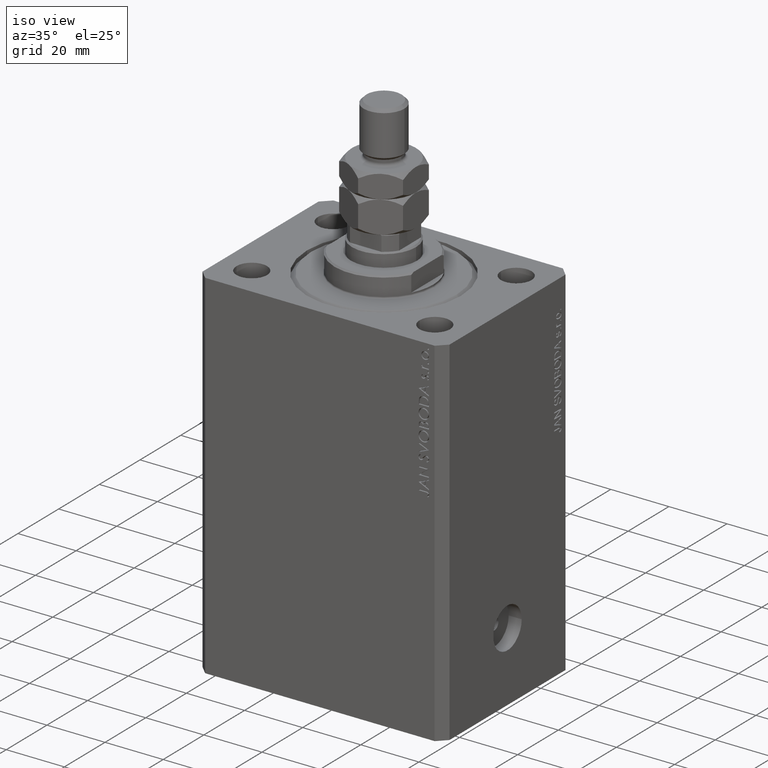
[diagram: clean part render]
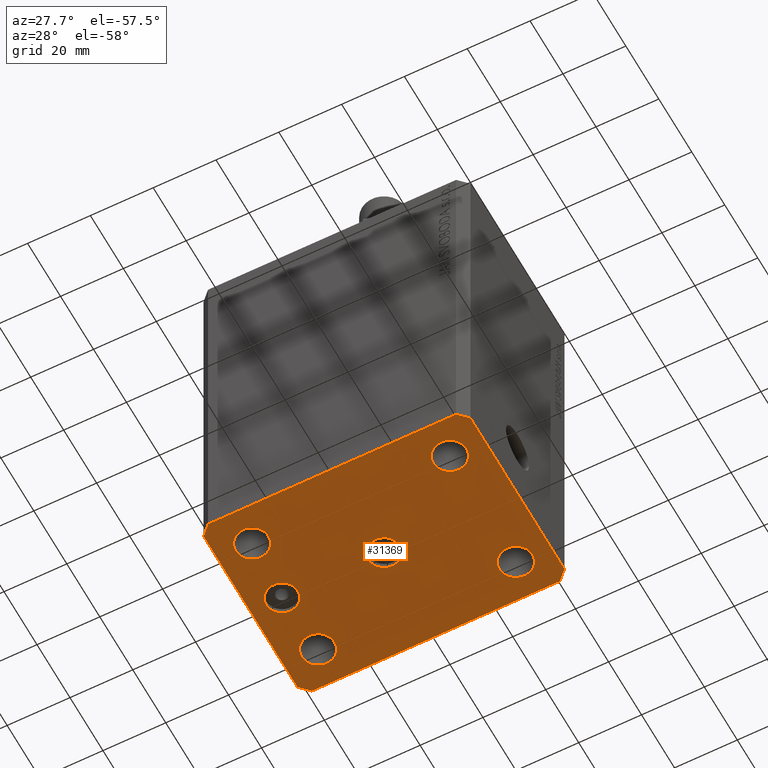
[diagram: tour spotlight — one face highlighted and labeled with its STEP entity id]
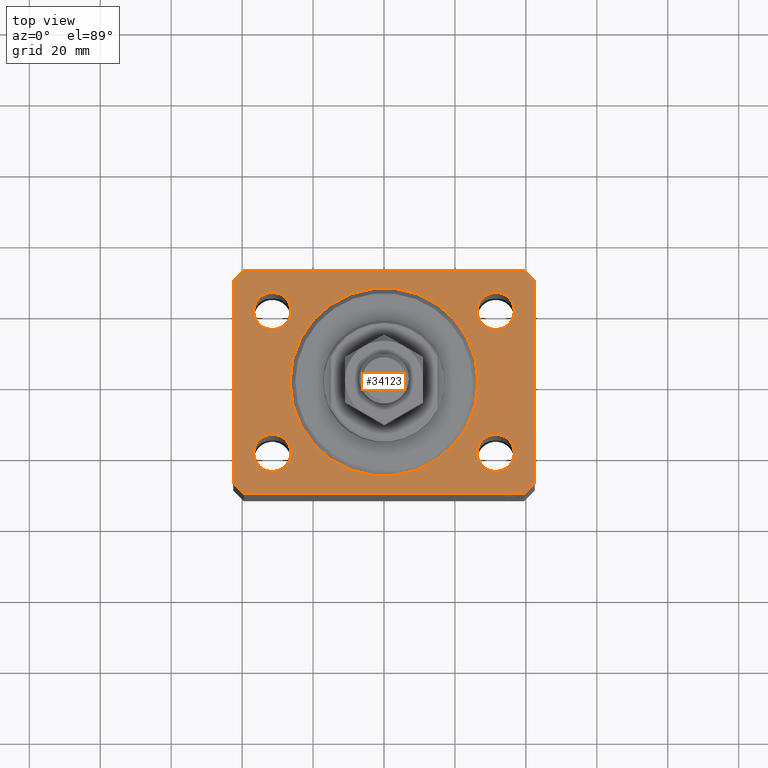
[diagram: tour spotlight — one face highlighted and labeled with its STEP entity id]
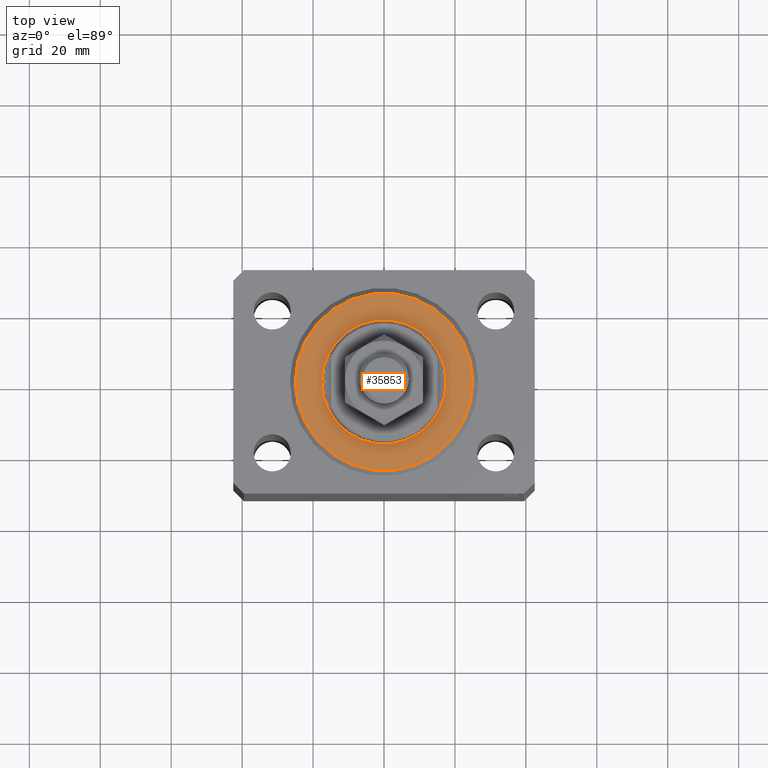
[diagram: tour spotlight — one face highlighted and labeled with its STEP entity id]
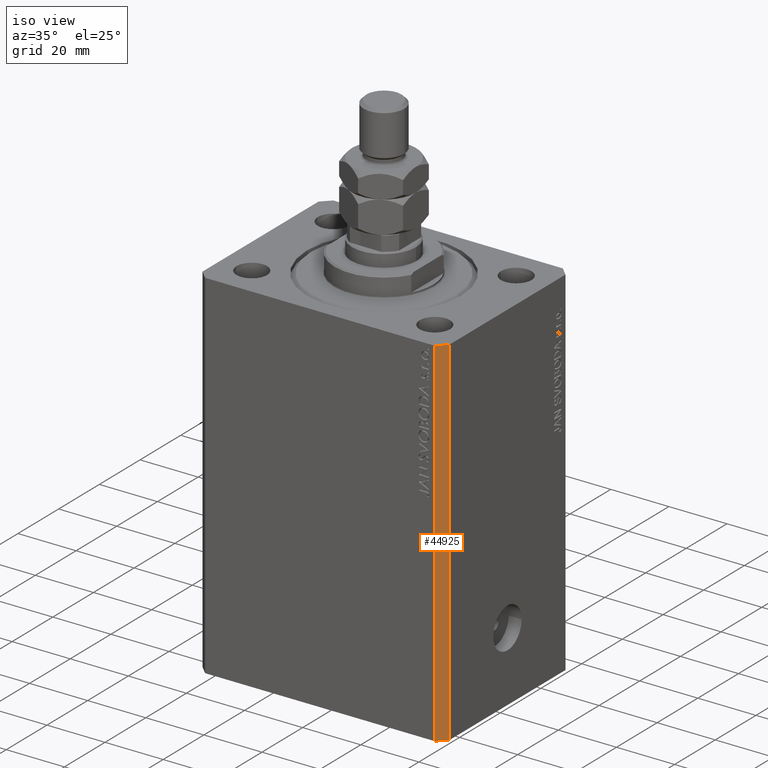
[diagram: tour spotlight — one face highlighted and labeled with its STEP entity id]
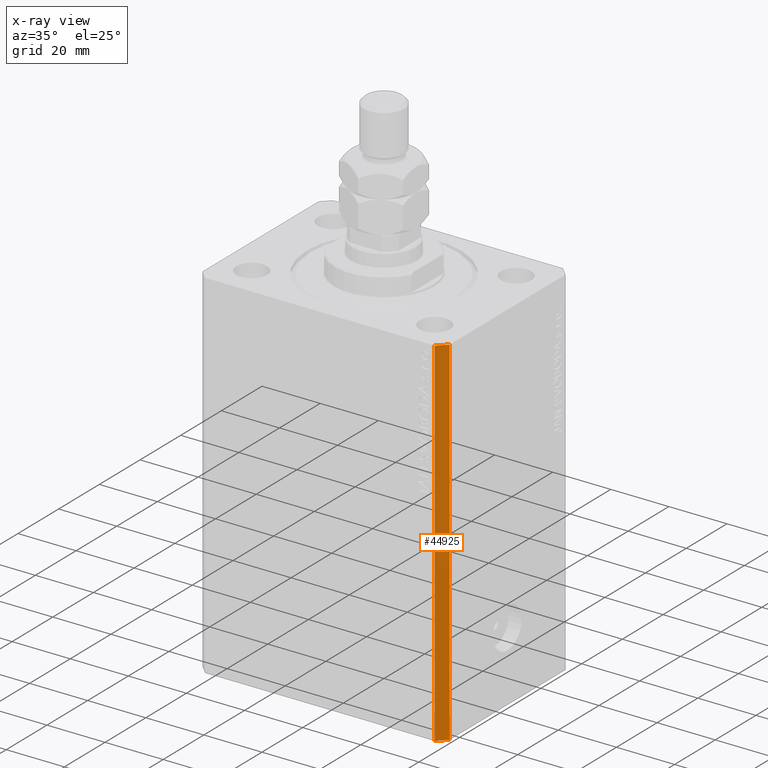
[diagram: x-ray of the same camera — body ghosted, this tour face saturated]
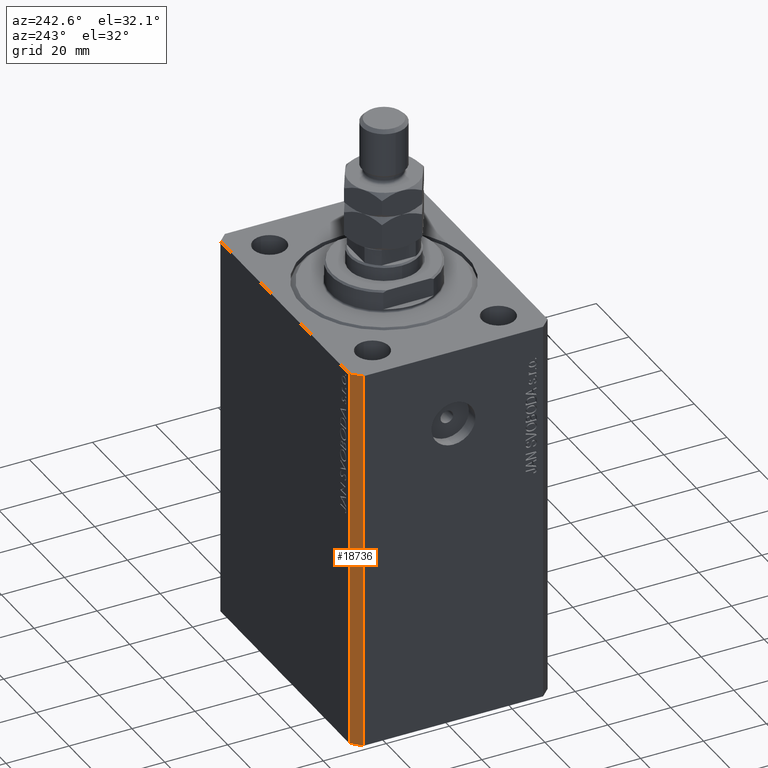
[diagram: tour spotlight — one face highlighted and labeled with its STEP entity id]
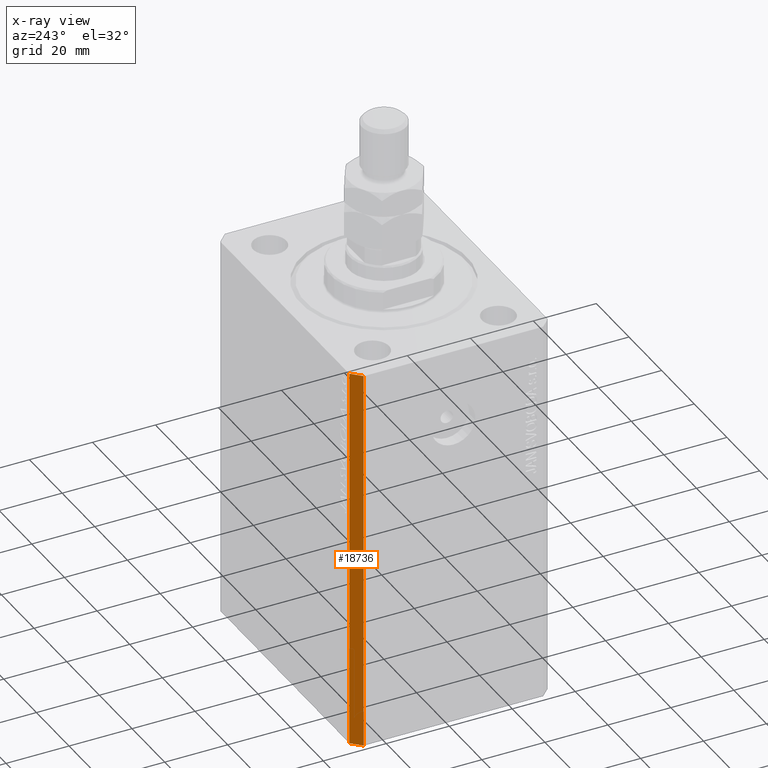
[diagram: x-ray of the same camera — body ghosted, this tour face saturated]
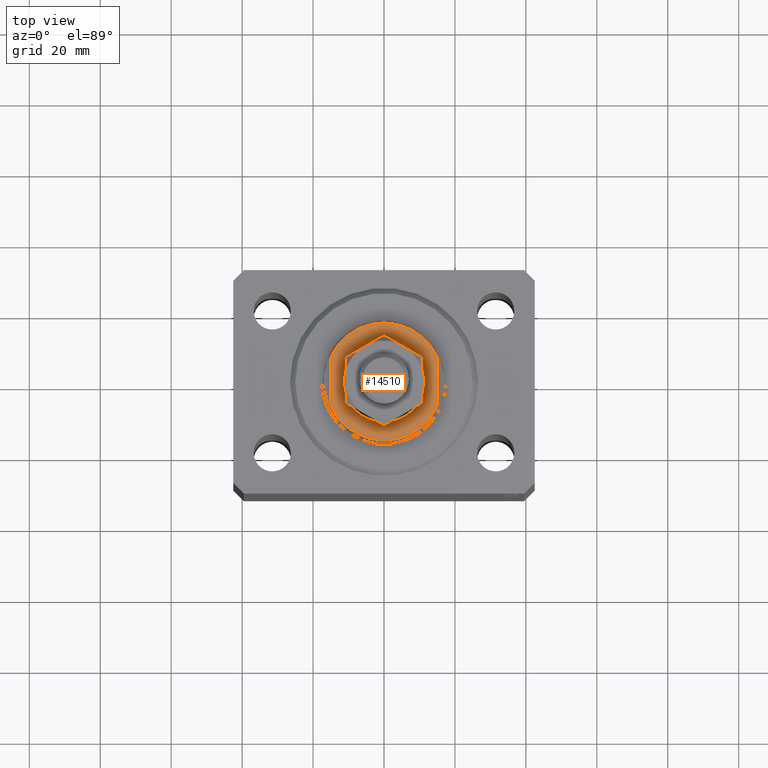
[diagram: tour spotlight — one face highlighted and labeled with its STEP entity id]
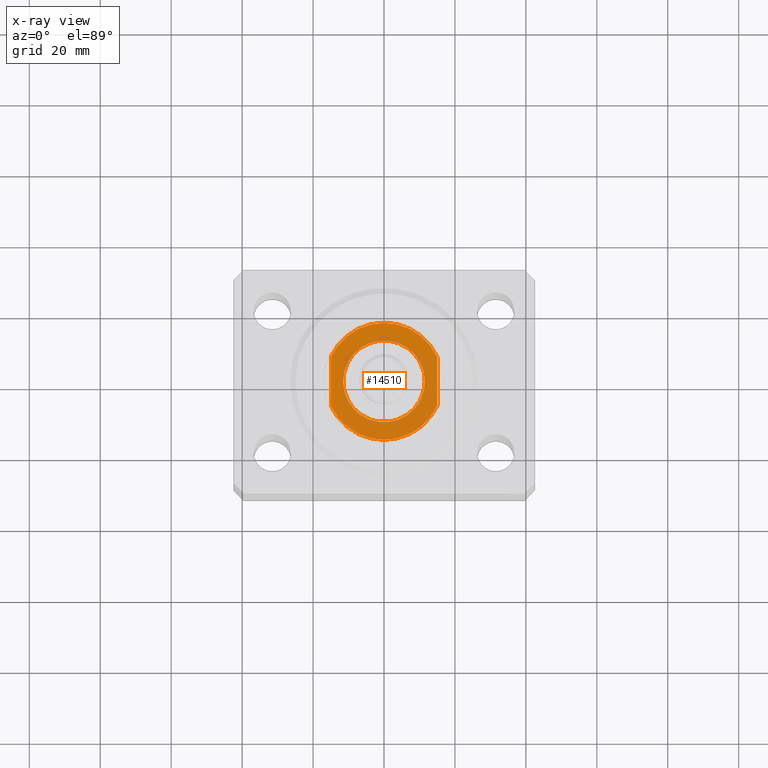
[diagram: x-ray of the same camera — body ghosted, this tour face saturated]
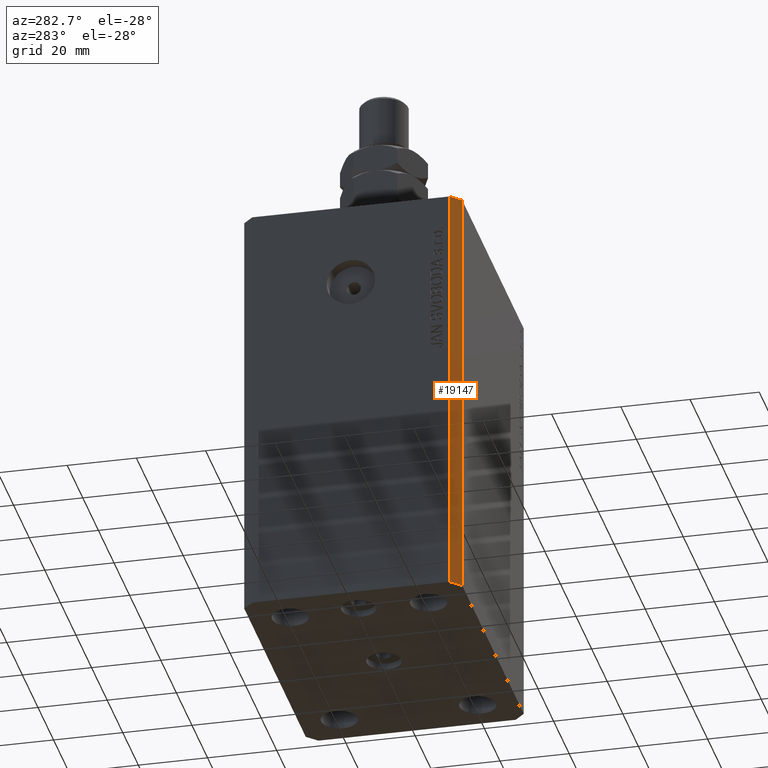
[diagram: tour spotlight — one face highlighted and labeled with its STEP entity id]
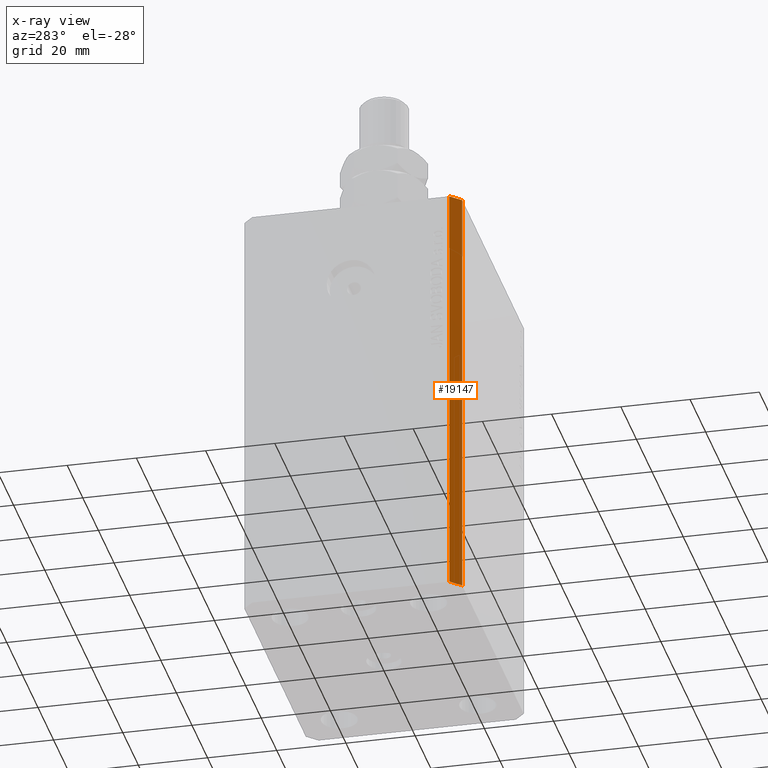
[diagram: x-ray of the same camera — body ghosted, this tour face saturated]
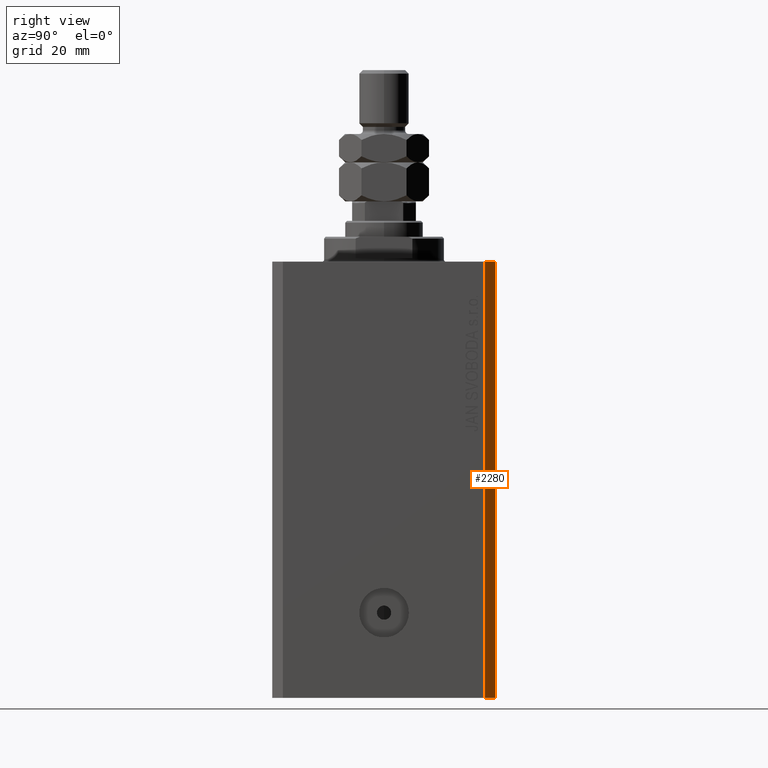
[diagram: tour spotlight — one face highlighted and labeled with its STEP entity id]
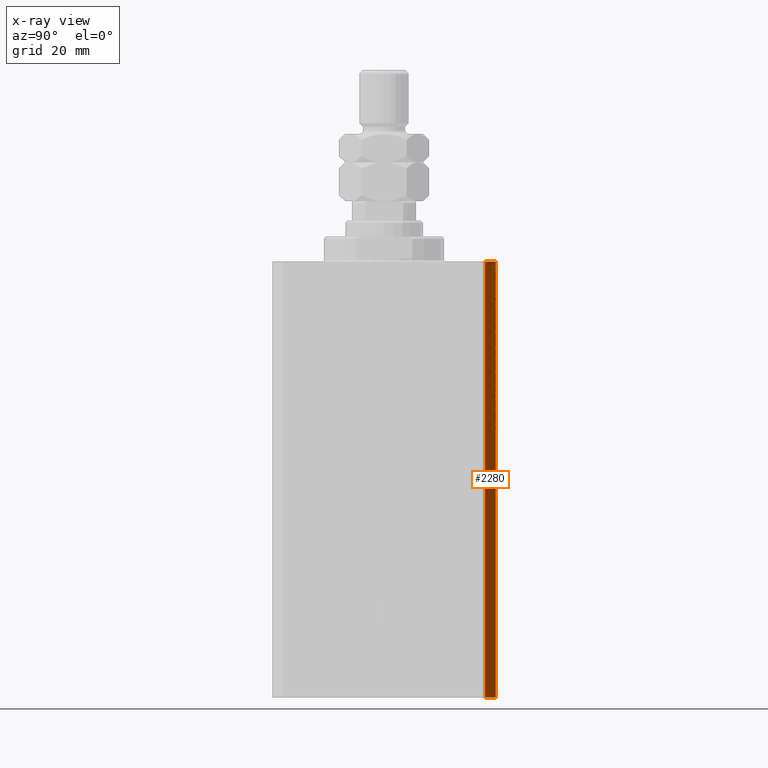
[diagram: x-ray of the same camera — body ghosted, this tour face saturated]
A machine part: a face-by-face anatomy tour. The part has 917 B-rep faces; the first image is the clean iso view, then the 8 largest visible faces are spotlighted one at a time (largest first), each with its STEP entity span.

Face 1 — auxiliary view, entity #31369. In plain terms, the highlighted planar face has unit normal (0, 0, 1).
Definition (entity closure, byte-faithful):
#44 = FACE_OUTER_BOUND ( 'NONE', #23607, .T. ) ;
#75 = VERTEX_POINT ( 'NONE', #43739 ) ;
#107 = DIRECTION ( 'NONE',  ( -1.000000000000000000, 0.000000000000000000, 0.000000000000000000 ) ) ;
#194 = VERTEX_POINT ( 'NONE', #2844 ) ;
#302 = AXIS2_PLACEMENT_3D ( 'NONE', #24879, #14129, #107 ) ;
#808 = EDGE_CURVE ( 'NONE', #25117, #24030, #24682, .T. ) ;
#1094 = AXIS2_PLACEMENT_3D ( 'NONE', #7277, #36454, #7969 ) ;
#1215 = CARTESIAN_POINT ( 'NONE',  ( -27.50000000000000355, 6.123233995736762338E-16, -123.0000000000000000 ) ) ;
#1263 = DIRECTION ( 'NONE',  ( -0.7071067811865471286, -0.7071067811865479058, 0.000000000000000000 ) ) ;
#1536 = ORIENTED_EDGE ( 'NONE', *, *, #23151, .F. ) ;
#1807 = DIRECTION ( 'NONE',  ( -0.000000000000000000, -0.000000000000000000, -1.000000000000000000 ) ) ;
#2246 = CARTESIAN_POINT ( 'NONE',  ( -39.50000000000000711, -31.50000000000000000, -123.0000000000000000 ) ) ;
#2261 = ORIENTED_EDGE ( 'NONE', *, *, #13666, .F. ) ;
#2658 = EDGE_CURVE ( 'NONE', #39849, #27090, #44837, .T. ) ;
#2844 = CARTESIAN_POINT ( 'NONE',  ( 42.50000000000051870, 28.49999999999995381, -123.0000000000000000 ) ) ;
#3448 = ORIENTED_EDGE ( 'NONE', *, *, #45920, .F. ) ;
#3619 = EDGE_CURVE ( 'NONE', #24030, #16848, #44883, .T. ) ;
#3645 = EDGE_CURVE ( 'NONE', #40877, #26865, #33692, .T. ) ;
#3777 = FACE_BOUND ( 'NONE', #11320, .T. ) ;
#4040 = CIRCLE ( 'NONE', #302, 5.000000000000000000 ) ;
#4378 = CARTESIAN_POINT ( 'NONE',  ( 26.25000000000000355, 19.99999999999999289, -123.0000000000000000 ) ) ;
#4438 = CARTESIAN_POINT ( 'NONE',  ( 42.50000000000051870, 28.49999999999995381, -123.0000000000000000 ) ) ;
#4473 = FACE_BOUND ( 'NONE', #26505, .T. ) ;
#4586 = DIRECTION ( 'NONE',  ( 8.886653596232072440E-15, 1.000000000000000000, 0.000000000000000000 ) ) ;
#4692 = VERTEX_POINT ( 'NONE', #17332 ) ;
#4821 = VERTEX_POINT ( 'NONE', #7678 ) ;
#5380 = CARTESIAN_POINT ( 'NONE',  ( 31.50000000000000000, 19.99999999999999289, -123.0000000000000000 ) ) ;
#6069 = CARTESIAN_POINT ( 'NONE',  ( -36.74999999999999289, -20.00000000000000355, -123.0000000000000000 ) ) ;
#6382 = DIRECTION ( 'NONE',  ( 1.000000000000000000, 0.000000000000000000, 0.000000000000000000 ) ) ;
#6464 = CARTESIAN_POINT ( 'NONE',  ( -42.50000000000000000, 28.50000000000000000, -123.0000000000000000 ) ) ;
#6636 = EDGE_LOOP ( 'NONE', ( #27706, #17834 ) ) ;
#6695 = DIRECTION ( 'NONE',  ( 0.000000000000000000, -1.000000000000000000, 0.000000000000000000 ) ) ;
#7253 = ORIENTED_EDGE ( 'NONE', *, *, #2658, .F. ) ;
#7277 = CARTESIAN_POINT ( 'NONE',  ( 0.000000000000000000, 0.000000000000000000, -123.0000000000000000 ) ) ;
#7499 = DIRECTION ( 'NONE',  ( 1.000000000000000000, 0.000000000000000000, 0.000000000000000000 ) ) ;
#7678 = CARTESIAN_POINT ( 'NONE',  ( -37.50000000000000000, 0.000000000000000000, -123.0000000000000000 ) ) ;
#7969 = DIRECTION ( 'NONE',  ( 1.000000000000000000, 0.000000000000000000, -0.000000000000000000 ) ) ;
#7985 = CIRCLE ( 'NONE', #17699, 5.249999999999997335 ) ;
#8619 = DIRECTION ( 'NONE',  ( -1.000000000000000000, 0.000000000000000000, 0.000000000000000000 ) ) ;
#8683 = VECTOR ( 'NONE', #4586, 1000.000000000000000 ) ;
#8834 = VERTEX_POINT ( 'NONE', #45348 ) ;
#8933 = DIRECTION ( 'NONE',  ( 1.000000000000000000, 0.000000000000000000, 0.000000000000000000 ) ) ;
#8988 = CARTESIAN_POINT ( 'NONE',  ( 39.50000000000000711, -31.50000000000000000, -123.0000000000000000 ) ) ;
#9397 = DIRECTION ( 'NONE',  ( 0.7071067811865471286, -0.7071067811865479058, 0.000000000000000000 ) ) ;
#9409 = EDGE_CURVE ( 'NONE', #10934, #25117, #40259, .T. ) ;
#9874 = EDGE_CURVE ( 'NONE', #4692, #36643, #21077, .T. ) ;
#10450 = LINE ( 'NONE', #39177, #43881 ) ;
#10592 = LINE ( 'NONE', #17841, #38545 ) ;
#10934 = VERTEX_POINT ( 'NONE', #19654 ) ;
#11086 = EDGE_CURVE ( 'NONE', #194, #37011, #25453, .T. ) ;
#11184 = EDGE_CURVE ( 'NONE', #4821, #35531, #25605, .T. ) ;
#11320 = EDGE_LOOP ( 'NONE', ( #36794, #3448 ) ) ;
#11743 = CARTESIAN_POINT ( 'NONE',  ( 39.50000000000000711, -31.50000000000000000, -123.0000000000000000 ) ) ;
#12019 = CARTESIAN_POINT ( 'NONE',  ( -31.50000000000000000, 19.99999999999999645, -123.0000000000000000 ) ) ;
#12167 = AXIS2_PLACEMENT_3D ( 'NONE', #44345, #36650, #19135 ) ;
#12285 = DIRECTION ( 'NONE',  ( 0.000000000000000000, 0.000000000000000000, -1.000000000000000000 ) ) ;
#12317 = DIRECTION ( 'NONE',  ( 1.000000000000000000, 0.000000000000000000, 0.000000000000000000 ) ) ;
#12479 = CIRCLE ( 'NONE', #39319, 5.250000000000000888 ) ;
#12710 = DIRECTION ( 'NONE',  ( -0.000000000000000000, -0.000000000000000000, -1.000000000000000000 ) ) ;
#12896 = CARTESIAN_POINT ( 'NONE',  ( -42.50000000000000000, -28.50000000000000000, -123.0000000000000000 ) ) ;
#13340 = VECTOR ( 'NONE', #6695, 1000.000000000000000 ) ;
#13451 = EDGE_CURVE ( 'NONE', #8834, #75, #4040, .T. ) ;
#13666 = EDGE_CURVE ( 'NONE', #44878, #14316, #18208, .T. ) ;
#14003 = LINE ( 'NONE', #15084, #8683 ) ;
#14129 = DIRECTION ( 'NONE',  ( 0.000000000000000000, 0.000000000000000000, -1.000000000000000000 ) ) ;
#14182 = DIRECTION ( 'NONE',  ( -1.000000000000000000, 0.000000000000000000, 0.000000000000000000 ) ) ;
#14316 = VERTEX_POINT ( 'NONE', #16720 ) ;
#14966 = FACE_BOUND ( 'NONE', #17249, .T. ) ;
#15047 = VECTOR ( 'NONE', #23236, 1000.000000000000000 ) ;
#15084 = CARTESIAN_POINT ( 'NONE',  ( 42.50000000000000711, -28.50000000000000355, -123.0000000000000000 ) ) ;
#15330 = ORIENTED_EDGE ( 'NONE', *, *, #28206, .F. ) ;
#15663 = CARTESIAN_POINT ( 'NONE',  ( -26.25000000000000000, 19.99999999999999645, -123.0000000000000000 ) ) ;
#15986 = DIRECTION ( 'NONE',  ( 1.000000000000000000, 0.000000000000000000, 0.000000000000000000 ) ) ;
#16082 = ORIENTED_EDGE ( 'NONE', *, *, #42092, .F. ) ;
#16720 = CARTESIAN_POINT ( 'NONE',  ( 26.24999999999999645, -20.00000000000000355, -123.0000000000000000 ) ) ;
#16848 = VERTEX_POINT ( 'NONE', #2246 ) ;
#17062 = CARTESIAN_POINT ( 'NONE',  ( -32.50000000000000000, 0.000000000000000000, -123.0000000000000000 ) ) ;
#17249 = EDGE_LOOP ( 'NONE', ( #7253, #21729 ) ) ;
#17332 = CARTESIAN_POINT ( 'NONE',  ( 36.75000000000000000, 19.99999999999999289, -123.0000000000000000 ) ) ;
#17699 = AXIS2_PLACEMENT_3D ( 'NONE', #21579, #18310, #19164 ) ;
#17834 = ORIENTED_EDGE ( 'NONE', *, *, #26647, .F. ) ;
#17841 = CARTESIAN_POINT ( 'NONE',  ( -39.50000000000000711, -31.50000000000000000, -123.0000000000000000 ) ) ;
#17985 = VERTEX_POINT ( 'NONE', #11743 ) ;
#18208 = CIRCLE ( 'NONE', #42080, 5.249999999999997335 ) ;
#18310 = DIRECTION ( 'NONE',  ( -0.000000000000000000, -0.000000000000000000, -1.000000000000000000 ) ) ;
#18708 = CARTESIAN_POINT ( 'NONE',  ( -31.49999999999999289, -20.00000000000000355, -123.0000000000000000 ) ) ;
#18911 = VECTOR ( 'NONE', #1263, 1000.000000000000000 ) ;
#18930 = AXIS2_PLACEMENT_3D ( 'NONE', #29804, #12285, #37260 ) ;
#19135 = DIRECTION ( 'NONE',  ( -1.000000000000000000, 0.000000000000000000, 0.000000000000000000 ) ) ;
#19164 = DIRECTION ( 'NONE',  ( 1.000000000000000000, 0.000000000000000000, 0.000000000000000000 ) ) ;
#19623 = AXIS2_PLACEMENT_3D ( 'NONE', #18708, #39497, #7499 ) ;
#19654 = CARTESIAN_POINT ( 'NONE',  ( -39.50000000000000711, 31.50000000000000000, -123.0000000000000000 ) ) ;
#19776 = CARTESIAN_POINT ( 'NONE',  ( -42.50000000000000000, 28.50000000000000000, -123.0000000000000000 ) ) ;
#19822 = CARTESIAN_POINT ( 'NONE',  ( 42.50000000000000711, -28.50000000000000355, -123.0000000000000000 ) ) ;
#19974 = LINE ( 'NONE', #8988, #15047 ) ;
#20277 = AXIS2_PLACEMENT_3D ( 'NONE', #23654, #20373, #8933 ) ;
#20373 = DIRECTION ( 'NONE',  ( -0.000000000000000000, -0.000000000000000000, -1.000000000000000000 ) ) ;
#21077 = CIRCLE ( 'NONE', #38971, 5.249999999999997335 ) ;
#21579 = CARTESIAN_POINT ( 'NONE',  ( 31.49999999999999289, -20.00000000000000355, -123.0000000000000000 ) ) ;
#21729 = ORIENTED_EDGE ( 'NONE', *, *, #41714, .F. ) ;
#22261 = CARTESIAN_POINT ( 'NONE',  ( -26.24999999999999289, -20.00000000000000355, -123.0000000000000000 ) ) ;
#22445 = FACE_BOUND ( 'NONE', #6636, .T. ) ;
#23134 = DIRECTION ( 'NONE',  ( 1.000000000000000000, 0.000000000000000000, 0.000000000000000000 ) ) ;
#23151 = EDGE_CURVE ( 'NONE', #17985, #28714, #19974, .T. ) ;
#23201 = CARTESIAN_POINT ( 'NONE',  ( 31.49999999999999289, -20.00000000000000355, -123.0000000000000000 ) ) ;
#23236 = DIRECTION ( 'NONE',  ( 0.7071067811865483499, 0.7071067811865466846, 0.000000000000000000 ) ) ;
#23607 = EDGE_LOOP ( 'NONE', ( #32028, #27906, #44248, #1536, #38195, #38795, #44296, #36444 ) ) ;
#23654 = CARTESIAN_POINT ( 'NONE',  ( -31.49999999999999289, -20.00000000000000355, -123.0000000000000000 ) ) ;
#23945 = ORIENTED_EDGE ( 'NONE', *, *, #31589, .F. ) ;
#24030 = VERTEX_POINT ( 'NONE', #27520 ) ;
#24537 = DIRECTION ( 'NONE',  ( 0.000000000000000000, 0.000000000000000000, -1.000000000000000000 ) ) ;
#24682 = LINE ( 'NONE', #6464, #13340 ) ;
#24879 = CARTESIAN_POINT ( 'NONE',  ( 0.000000000000000000, 0.000000000000000000, -123.0000000000000000 ) ) ;
#25117 = VERTEX_POINT ( 'NONE', #19776 ) ;
#25453 = LINE ( 'NONE', #4438, #39775 ) ;
#25605 = CIRCLE ( 'NONE', #12167, 4.999999999999997335 ) ;
#25996 = CIRCLE ( 'NONE', #43151, 4.999999999999997335 ) ;
#26468 = AXIS2_PLACEMENT_3D ( 'NONE', #30833, #45070, #45294 ) ;
#26505 = EDGE_LOOP ( 'NONE', ( #33142, #23945 ) ) ;
#26647 = EDGE_CURVE ( 'NONE', #26865, #40877, #41224, .T. ) ;
#26865 = VERTEX_POINT ( 'NONE', #6069 ) ;
#27090 = VERTEX_POINT ( 'NONE', #34918 ) ;
#27520 = CARTESIAN_POINT ( 'NONE',  ( -42.50000000000000000, -28.50000000000000000, -123.0000000000000000 ) ) ;
#27706 = ORIENTED_EDGE ( 'NONE', *, *, #3645, .F. ) ;
#27863 = CIRCLE ( 'NONE', #18930, 5.000000000000000000 ) ;
#27906 = ORIENTED_EDGE ( 'NONE', *, *, #11086, .F. ) ;
#28206 = EDGE_CURVE ( 'NONE', #75, #8834, #27863, .T. ) ;
#28469 = EDGE_LOOP ( 'NONE', ( #15330, #31370 ) ) ;
#28714 = VERTEX_POINT ( 'NONE', #19822 ) ;
#29166 = VECTOR ( 'NONE', #9397, 1000.000000000000000 ) ;
#29804 = CARTESIAN_POINT ( 'NONE',  ( 0.000000000000000000, 0.000000000000000000, -123.0000000000000000 ) ) ;
#30833 = CARTESIAN_POINT ( 'NONE',  ( 31.50000000000000000, 19.99999999999999289, -123.0000000000000000 ) ) ;
#31369 = ADVANCED_FACE ( 'NONE', ( #39729, #3777, #22445, #35765, #4473, #14966, #44 ), #43237, .F. ) ;
#31370 = ORIENTED_EDGE ( 'NONE', *, *, #13451, .F. ) ;
#31589 = EDGE_CURVE ( 'NONE', #36643, #4692, #34667, .T. ) ;
#32028 = ORIENTED_EDGE ( 'NONE', *, *, #46133, .F. ) ;
#33142 = ORIENTED_EDGE ( 'NONE', *, *, #9874, .F. ) ;
#33692 = CIRCLE ( 'NONE', #20277, 5.250000000000000888 ) ;
#34334 = DIRECTION ( 'NONE',  ( -0.000000000000000000, -0.000000000000000000, -1.000000000000000000 ) ) ;
#34355 = CARTESIAN_POINT ( 'NONE',  ( 39.50000000000056843, 31.50000000000000000, -123.0000000000000000 ) ) ;
#34484 = CARTESIAN_POINT ( 'NONE',  ( -31.50000000000000000, 19.99999999999999645, -123.0000000000000000 ) ) ;
#34667 = CIRCLE ( 'NONE', #26468, 5.249999999999997335 ) ;
#34918 = CARTESIAN_POINT ( 'NONE',  ( -36.75000000000000000, 19.99999999999999645, -123.0000000000000000 ) ) ;
#35531 = VERTEX_POINT ( 'NONE', #1215 ) ;
#35765 = FACE_BOUND ( 'NONE', #39111, .T. ) ;
#36444 = ORIENTED_EDGE ( 'NONE', *, *, #9409, .F. ) ;
#36454 = DIRECTION ( 'NONE',  ( 0.000000000000000000, 0.000000000000000000, 1.000000000000000000 ) ) ;
#36643 = VERTEX_POINT ( 'NONE', #4378 ) ;
#36650 = DIRECTION ( 'NONE',  ( 0.000000000000000000, 0.000000000000000000, -1.000000000000000000 ) ) ;
#36794 = ORIENTED_EDGE ( 'NONE', *, *, #11184, .F. ) ;
#37011 = VERTEX_POINT ( 'NONE', #34355 ) ;
#37260 = DIRECTION ( 'NONE',  ( -1.000000000000000000, 0.000000000000000000, 0.000000000000000000 ) ) ;
#38097 = CARTESIAN_POINT ( 'NONE',  ( 36.74999999999999289, -20.00000000000000355, -123.0000000000000000 ) ) ;
#38195 = ORIENTED_EDGE ( 'NONE', *, *, #40771, .F. ) ;
#38545 = VECTOR ( 'NONE', #43048, 1000.000000000000000 ) ;
#38795 = ORIENTED_EDGE ( 'NONE', *, *, #3619, .F. ) ;
#38971 = AXIS2_PLACEMENT_3D ( 'NONE', #5380, #34334, #23134 ) ;
#39080 = EDGE_CURVE ( 'NONE', #28714, #194, #14003, .T. ) ;
#39111 = EDGE_LOOP ( 'NONE', ( #2261, #16082 ) ) ;
#39177 = CARTESIAN_POINT ( 'NONE',  ( 39.50000000000056843, 31.50000000000000000, -123.0000000000000000 ) ) ;
#39319 = AXIS2_PLACEMENT_3D ( 'NONE', #34484, #1807, #12317 ) ;
#39497 = DIRECTION ( 'NONE',  ( -0.000000000000000000, -0.000000000000000000, -1.000000000000000000 ) ) ;
#39692 = DIRECTION ( 'NONE',  ( -0.7071067811865356934, 0.7071067811865594521, 0.000000000000000000 ) ) ;
#39729 = FACE_BOUND ( 'NONE', #28469, .T. ) ;
#39775 = VECTOR ( 'NONE', #39692, 1000.000000000000114 ) ;
#39792 = CARTESIAN_POINT ( 'NONE',  ( -39.50000000000000711, 31.50000000000000000, -123.0000000000000000 ) ) ;
#39849 = VERTEX_POINT ( 'NONE', #15663 ) ;
#40259 = LINE ( 'NONE', #39792, #18911 ) ;
#40771 = EDGE_CURVE ( 'NONE', #16848, #17985, #10592, .T. ) ;
#40877 = VERTEX_POINT ( 'NONE', #22261 ) ;
#41224 = CIRCLE ( 'NONE', #19623, 5.250000000000000888 ) ;
#41414 = DIRECTION ( 'NONE',  ( -0.000000000000000000, -0.000000000000000000, -1.000000000000000000 ) ) ;
#41714 = EDGE_CURVE ( 'NONE', #27090, #39849, #12479, .T. ) ;
#42080 = AXIS2_PLACEMENT_3D ( 'NONE', #23201, #41414, #6382 ) ;
#42092 = EDGE_CURVE ( 'NONE', #14316, #44878, #7985, .T. ) ;
#43048 = DIRECTION ( 'NONE',  ( 1.000000000000000000, 0.000000000000000000, 0.000000000000000000 ) ) ;
#43151 = AXIS2_PLACEMENT_3D ( 'NONE', #17062, #24537, #8619 ) ;
#43237 = PLANE ( 'NONE',  #1094 ) ;
#43739 = CARTESIAN_POINT ( 'NONE',  ( -5.000000000000000000, 0.000000000000000000, -123.0000000000000000 ) ) ;
#43881 = VECTOR ( 'NONE', #14182, 1000.000000000000000 ) ;
#44099 = AXIS2_PLACEMENT_3D ( 'NONE', #12019, #12710, #15986 ) ;
#44248 = ORIENTED_EDGE ( 'NONE', *, *, #39080, .F. ) ;
#44296 = ORIENTED_EDGE ( 'NONE', *, *, #808, .F. ) ;
#44345 = CARTESIAN_POINT ( 'NONE',  ( -32.50000000000000000, 0.000000000000000000, -123.0000000000000000 ) ) ;
#44837 = CIRCLE ( 'NONE', #44099, 5.250000000000000888 ) ;
#44878 = VERTEX_POINT ( 'NONE', #38097 ) ;
#44883 = LINE ( 'NONE', #12896, #29166 ) ;
#45070 = DIRECTION ( 'NONE',  ( -0.000000000000000000, -0.000000000000000000, -1.000000000000000000 ) ) ;
#45294 = DIRECTION ( 'NONE',  ( 1.000000000000000000, 0.000000000000000000, 0.000000000000000000 ) ) ;
#45348 = CARTESIAN_POINT ( 'NONE',  ( 5.000000000000000000, 6.123233995736765296E-16, -123.0000000000000000 ) ) ;
#45920 = EDGE_CURVE ( 'NONE', #35531, #4821, #25996, .T. ) ;
#46133 = EDGE_CURVE ( 'NONE', #37011, #10934, #10450, .T. ) ;

Face 2 — top view, entity #34123. In plain terms, the highlighted planar face has unit normal (0, 0, 1).
Definition (entity closure, byte-faithful):
#150 = CARTESIAN_POINT ( 'NONE',  ( 31.49999999999999289, -20.00000000000000355, 0.000000000000000000 ) ) ;
#273 = CIRCLE ( 'NONE', #20306, 5.249999999999997335 ) ;
#940 = ORIENTED_EDGE ( 'NONE', *, *, #12244, .F. ) ;
#1088 = CARTESIAN_POINT ( 'NONE',  ( 39.50000000000000711, -31.50000000000000000, 0.000000000000000000 ) ) ;
#1663 = VECTOR ( 'NONE', #9289, 1000.000000000000000 ) ;
#1672 = LINE ( 'NONE', #19425, #24494 ) ;
#2827 = DIRECTION ( 'NONE',  ( 1.000000000000000000, 0.000000000000000000, 0.000000000000000000 ) ) ;
#3078 = CARTESIAN_POINT ( 'NONE',  ( -42.50000000000000000, -28.50000000000000000, 0.000000000000000000 ) ) ;
#3208 = DIRECTION ( 'NONE',  ( 0.000000000000000000, 0.000000000000000000, 1.000000000000000000 ) ) ;
#3368 = EDGE_LOOP ( 'NONE', ( #940, #5059 ) ) ;
#3754 = VERTEX_POINT ( 'NONE', #24345 ) ;
#3898 = LINE ( 'NONE', #1088, #45131 ) ;
#4838 = DIRECTION ( 'NONE',  ( 1.000000000000000000, 0.000000000000000000, -0.000000000000000000 ) ) ;
#5033 = EDGE_CURVE ( 'NONE', #13988, #11099, #19337, .T. ) ;
#5059 = ORIENTED_EDGE ( 'NONE', *, *, #6133, .F. ) ;
#5158 = VERTEX_POINT ( 'NONE', #34076 ) ;
#5313 = LINE ( 'NONE', #40586, #21844 ) ;
#5518 = CIRCLE ( 'NONE', #35366, 5.250000000000000888 ) ;
#5554 = VERTEX_POINT ( 'NONE', #16173 ) ;
#6133 = EDGE_CURVE ( 'NONE', #31064, #26466, #33757, .T. ) ;
#6309 = EDGE_CURVE ( 'NONE', #5158, #30954, #5313, .T. ) ;
#6544 = CARTESIAN_POINT ( 'NONE',  ( -39.50000000000000711, 31.50000000000000000, 0.000000000000000000 ) ) ;
#6563 = EDGE_CURVE ( 'NONE', #30954, #40075, #34734, .T. ) ;
#7046 = ORIENTED_EDGE ( 'NONE', *, *, #33634, .F. ) ;
#7361 = EDGE_LOOP ( 'NONE', ( #12141, #24646, #43906, #40511, #37603, #18056, #14296, #31054 ) ) ;
#7547 = EDGE_CURVE ( 'NONE', #12976, #13988, #26300, .T. ) ;
#8112 = FACE_BOUND ( 'NONE', #27310, .T. ) ;
#8440 = CIRCLE ( 'NONE', #29294, 5.250000000000000888 ) ;
#8478 = AXIS2_PLACEMENT_3D ( 'NONE', #13690, #38208, #23525 ) ;
#8551 = DIRECTION ( 'NONE',  ( 0.7071067811865471286, -0.7071067811865479058, 0.000000000000000000 ) ) ;
#8714 = LINE ( 'NONE', #19448, #27286 ) ;
#8774 = EDGE_CURVE ( 'NONE', #40352, #5554, #24157, .T. ) ;
#9050 = DIRECTION ( 'NONE',  ( 8.886653596232072440E-15, 1.000000000000000000, 0.000000000000000000 ) ) ;
#9077 = EDGE_CURVE ( 'NONE', #40161, #44230, #273, .T. ) ;
#9176 = DIRECTION ( 'NONE',  ( 0.000000000000000000, -1.000000000000000000, 0.000000000000000000 ) ) ;
#9289 = DIRECTION ( 'NONE',  ( 1.000000000000000000, 0.000000000000000000, 0.000000000000000000 ) ) ;
#9339 = CARTESIAN_POINT ( 'NONE',  ( 0.000000000000000000, 0.000000000000000000, 0.000000000000000000 ) ) ;
#9596 = CARTESIAN_POINT ( 'NONE',  ( 31.50000000000000000, 19.99999999999999289, 0.000000000000000000 ) ) ;
#9911 = VECTOR ( 'NONE', #24463, 1000.000000000000114 ) ;
#9935 = ORIENTED_EDGE ( 'NONE', *, *, #11382, .F. ) ;
#9948 = VECTOR ( 'NONE', #8551, 1000.000000000000000 ) ;
#11092 = EDGE_LOOP ( 'NONE', ( #31796, #38412 ) ) ;
#11099 = VERTEX_POINT ( 'NONE', #35731 ) ;
#11382 = EDGE_CURVE ( 'NONE', #17624, #3754, #8440, .T. ) ;
#11838 = PLANE ( 'NONE',  #34632 ) ;
#12061 = FACE_BOUND ( 'NONE', #3368, .T. ) ;
#12141 = ORIENTED_EDGE ( 'NONE', *, *, #44025, .T. ) ;
#12244 = EDGE_CURVE ( 'NONE', #26466, #31064, #33787, .T. ) ;
#12976 = VERTEX_POINT ( 'NONE', #3078 ) ;
#13313 = EDGE_LOOP ( 'NONE', ( #13916, #31636 ) ) ;
#13325 = DIRECTION ( 'NONE',  ( 0.000000000000000000, 0.000000000000000000, 1.000000000000000000 ) ) ;
#13690 = CARTESIAN_POINT ( 'NONE',  ( 0.000000000000000000, 0.000000000000000000, 0.000000000000000000 ) ) ;
#13850 = AXIS2_PLACEMENT_3D ( 'NONE', #33234, #22960, #22500 ) ;
#13916 = ORIENTED_EDGE ( 'NONE', *, *, #38489, .F. ) ;
#13988 = VERTEX_POINT ( 'NONE', #26882 ) ;
#14091 = CIRCLE ( 'NONE', #28254, 5.249999999999997335 ) ;
#14296 = ORIENTED_EDGE ( 'NONE', *, *, #6309, .T. ) ;
#15032 = EDGE_CURVE ( 'NONE', #29793, #21166, #39114, .T. ) ;
#15350 = VECTOR ( 'NONE', #43336, 1000.000000000000000 ) ;
#15793 = CARTESIAN_POINT ( 'NONE',  ( 0.000000000000000000, 0.000000000000000000, 0.000000000000000000 ) ) ;
#15859 = AXIS2_PLACEMENT_3D ( 'NONE', #9339, #45285, #35013 ) ;
#15950 = CARTESIAN_POINT ( 'NONE',  ( 26.50000000000000355, 0.000000000000000000, 0.000000000000000000 ) ) ;
#16173 = CARTESIAN_POINT ( 'NONE',  ( -26.25000000000000000, 19.99999999999999645, 0.000000000000000000 ) ) ;
#17329 = DIRECTION ( 'NONE',  ( 1.000000000000000000, 0.000000000000000000, 0.000000000000000000 ) ) ;
#17624 = VERTEX_POINT ( 'NONE', #38262 ) ;
#17970 = DIRECTION ( 'NONE',  ( 1.000000000000000000, 0.000000000000000000, 0.000000000000000000 ) ) ;
#18056 = ORIENTED_EDGE ( 'NONE', *, *, #31918, .T. ) ;
#18897 = CARTESIAN_POINT ( 'NONE',  ( 39.50000000000056843, 31.50000000000000000, 0.000000000000000000 ) ) ;
#18918 = CARTESIAN_POINT ( 'NONE',  ( 36.74999999999999289, -20.00000000000000355, 0.000000000000000000 ) ) ;
#19337 = LINE ( 'NONE', #26814, #1663 ) ;
#19378 = CARTESIAN_POINT ( 'NONE',  ( 36.75000000000000000, 19.99999999999999289, 0.000000000000000000 ) ) ;
#19425 = CARTESIAN_POINT ( 'NONE',  ( 39.50000000000056843, 31.50000000000000000, 0.000000000000000000 ) ) ;
#19448 = CARTESIAN_POINT ( 'NONE',  ( -42.50000000000000000, 28.50000000000000000, 0.000000000000000000 ) ) ;
#19948 = EDGE_CURVE ( 'NONE', #44230, #40161, #14091, .T. ) ;
#20306 = AXIS2_PLACEMENT_3D ( 'NONE', #150, #3208, #42657 ) ;
#20429 = EDGE_CURVE ( 'NONE', #21166, #29793, #39413, .T. ) ;
#21166 = VERTEX_POINT ( 'NONE', #36688 ) ;
#21844 = VECTOR ( 'NONE', #9050, 1000.000000000000000 ) ;
#22362 = CARTESIAN_POINT ( 'NONE',  ( -31.49999999999999289, -20.00000000000000355, 0.000000000000000000 ) ) ;
#22500 = DIRECTION ( 'NONE',  ( 1.000000000000000000, 0.000000000000000000, 0.000000000000000000 ) ) ;
#22645 = ORIENTED_EDGE ( 'NONE', *, *, #15032, .F. ) ;
#22960 = DIRECTION ( 'NONE',  ( 0.000000000000000000, 0.000000000000000000, 1.000000000000000000 ) ) ;
#23191 = DIRECTION ( 'NONE',  ( 1.000000000000000000, 0.000000000000000000, 0.000000000000000000 ) ) ;
#23525 = DIRECTION ( 'NONE',  ( 1.000000000000000000, 0.000000000000000000, 0.000000000000000000 ) ) ;
#24036 = CARTESIAN_POINT ( 'NONE',  ( -36.75000000000000000, 19.99999999999999645, 0.000000000000000000 ) ) ;
#24157 = CIRCLE ( 'NONE', #44272, 5.250000000000000888 ) ;
#24301 = DIRECTION ( 'NONE',  ( 0.000000000000000000, 0.000000000000000000, 1.000000000000000000 ) ) ;
#24345 = CARTESIAN_POINT ( 'NONE',  ( -26.24999999999999289, -20.00000000000000355, 0.000000000000000000 ) ) ;
#24463 = DIRECTION ( 'NONE',  ( -0.7071067811865356934, 0.7071067811865594521, 0.000000000000000000 ) ) ;
#24494 = VECTOR ( 'NONE', #39997, 1000.000000000000000 ) ;
#24520 = EDGE_LOOP ( 'NONE', ( #7046, #9935 ) ) ;
#24646 = ORIENTED_EDGE ( 'NONE', *, *, #38017, .T. ) ;
#25593 = CARTESIAN_POINT ( 'NONE',  ( -39.50000000000000711, 31.50000000000000000, 0.000000000000000000 ) ) ;
#26094 = DIRECTION ( 'NONE',  ( 0.000000000000000000, 0.000000000000000000, 1.000000000000000000 ) ) ;
#26300 = LINE ( 'NONE', #33292, #9948 ) ;
#26466 = VERTEX_POINT ( 'NONE', #15950 ) ;
#26550 = FACE_BOUND ( 'NONE', #24520, .T. ) ;
#26814 = CARTESIAN_POINT ( 'NONE',  ( -39.50000000000000711, -31.50000000000000000, 0.000000000000000000 ) ) ;
#26882 = CARTESIAN_POINT ( 'NONE',  ( -39.50000000000000711, -31.50000000000000000, 0.000000000000000000 ) ) ;
#27286 = VECTOR ( 'NONE', #9176, 1000.000000000000000 ) ;
#27310 = EDGE_LOOP ( 'NONE', ( #22645, #35871 ) ) ;
#27393 = DIRECTION ( 'NONE',  ( 0.000000000000000000, 0.000000000000000000, 1.000000000000000000 ) ) ;
#28254 = AXIS2_PLACEMENT_3D ( 'NONE', #44436, #27393, #23191 ) ;
#29084 = LINE ( 'NONE', #25593, #15350 ) ;
#29294 = AXIS2_PLACEMENT_3D ( 'NONE', #22362, #40331, #44292 ) ;
#29588 = FACE_BOUND ( 'NONE', #13313, .T. ) ;
#29793 = VERTEX_POINT ( 'NONE', #19378 ) ;
#30954 = VERTEX_POINT ( 'NONE', #33340 ) ;
#31054 = ORIENTED_EDGE ( 'NONE', *, *, #6563, .T. ) ;
#31064 = VERTEX_POINT ( 'NONE', #40809 ) ;
#31458 = CARTESIAN_POINT ( 'NONE',  ( 26.24999999999999645, -20.00000000000000355, 0.000000000000000000 ) ) ;
#31636 = ORIENTED_EDGE ( 'NONE', *, *, #8774, .F. ) ;
#31796 = ORIENTED_EDGE ( 'NONE', *, *, #19948, .F. ) ;
#31918 = EDGE_CURVE ( 'NONE', #11099, #5158, #3898, .T. ) ;
#32508 = CIRCLE ( 'NONE', #13850, 5.250000000000000888 ) ;
#33234 = CARTESIAN_POINT ( 'NONE',  ( -31.50000000000000000, 19.99999999999999645, 0.000000000000000000 ) ) ;
#33261 = CARTESIAN_POINT ( 'NONE',  ( -42.50000000000000000, 28.50000000000000000, 0.000000000000000000 ) ) ;
#33292 = CARTESIAN_POINT ( 'NONE',  ( -42.50000000000000000, -28.50000000000000000, 0.000000000000000000 ) ) ;
#33340 = CARTESIAN_POINT ( 'NONE',  ( 42.50000000000051870, 28.49999999999995381, 0.000000000000000000 ) ) ;
#33634 = EDGE_CURVE ( 'NONE', #3754, #17624, #5518, .T. ) ;
#33757 = CIRCLE ( 'NONE', #15859, 26.50000000000000355 ) ;
#33787 = CIRCLE ( 'NONE', #8478, 26.50000000000000355 ) ;
#34076 = CARTESIAN_POINT ( 'NONE',  ( 42.50000000000000711, -28.50000000000000355, 0.000000000000000000 ) ) ;
#34123 = ADVANCED_FACE ( 'NONE', ( #12061, #26550, #40101, #8112, #29588, #36589 ), #11838, .T. ) ;
#34632 = AXIS2_PLACEMENT_3D ( 'NONE', #15793, #26094, #4838 ) ;
#34734 = LINE ( 'NONE', #44769, #9911 ) ;
#34816 = CARTESIAN_POINT ( 'NONE',  ( -31.49999999999999289, -20.00000000000000355, 0.000000000000000000 ) ) ;
#35013 = DIRECTION ( 'NONE',  ( 1.000000000000000000, 0.000000000000000000, 0.000000000000000000 ) ) ;
#35366 = AXIS2_PLACEMENT_3D ( 'NONE', #34816, #44854, #2827 ) ;
#35711 = CARTESIAN_POINT ( 'NONE',  ( 31.50000000000000000, 19.99999999999999289, 0.000000000000000000 ) ) ;
#35731 = CARTESIAN_POINT ( 'NONE',  ( 39.50000000000000711, -31.50000000000000000, 0.000000000000000000 ) ) ;
#35871 = ORIENTED_EDGE ( 'NONE', *, *, #20429, .F. ) ;
#36589 = FACE_OUTER_BOUND ( 'NONE', #7361, .T. ) ;
#36688 = CARTESIAN_POINT ( 'NONE',  ( 26.25000000000000355, 19.99999999999999289, 0.000000000000000000 ) ) ;
#36870 = AXIS2_PLACEMENT_3D ( 'NONE', #9596, #13325, #41361 ) ;
#37603 = ORIENTED_EDGE ( 'NONE', *, *, #5033, .T. ) ;
#38017 = EDGE_CURVE ( 'NONE', #45851, #43645, #29084, .T. ) ;
#38208 = DIRECTION ( 'NONE',  ( 0.000000000000000000, 0.000000000000000000, 1.000000000000000000 ) ) ;
#38262 = CARTESIAN_POINT ( 'NONE',  ( -36.74999999999999289, -20.00000000000000355, 0.000000000000000000 ) ) ;
#38351 = DIRECTION ( 'NONE',  ( 0.000000000000000000, 0.000000000000000000, 1.000000000000000000 ) ) ;
#38412 = ORIENTED_EDGE ( 'NONE', *, *, #9077, .F. ) ;
#38485 = EDGE_CURVE ( 'NONE', #43645, #12976, #8714, .T. ) ;
#38489 = EDGE_CURVE ( 'NONE', #5554, #40352, #32508, .T. ) ;
#39041 = CARTESIAN_POINT ( 'NONE',  ( -31.50000000000000000, 19.99999999999999645, 0.000000000000000000 ) ) ;
#39114 = CIRCLE ( 'NONE', #36870, 5.249999999999997335 ) ;
#39413 = CIRCLE ( 'NONE', #40192, 5.249999999999997335 ) ;
#39997 = DIRECTION ( 'NONE',  ( -1.000000000000000000, 0.000000000000000000, 0.000000000000000000 ) ) ;
#40075 = VERTEX_POINT ( 'NONE', #18897 ) ;
#40101 = FACE_BOUND ( 'NONE', #11092, .T. ) ;
#40161 = VERTEX_POINT ( 'NONE', #31458 ) ;
#40192 = AXIS2_PLACEMENT_3D ( 'NONE', #35711, #24301, #17970 ) ;
#40331 = DIRECTION ( 'NONE',  ( 0.000000000000000000, 0.000000000000000000, 1.000000000000000000 ) ) ;
#40352 = VERTEX_POINT ( 'NONE', #24036 ) ;
#40511 = ORIENTED_EDGE ( 'NONE', *, *, #7547, .T. ) ;
#40586 = CARTESIAN_POINT ( 'NONE',  ( 42.50000000000000711, -28.50000000000000355, 0.000000000000000000 ) ) ;
#40809 = CARTESIAN_POINT ( 'NONE',  ( -26.50000000000000355, 3.245314017740486554E-15, 0.000000000000000000 ) ) ;
#41361 = DIRECTION ( 'NONE',  ( 1.000000000000000000, 0.000000000000000000, 0.000000000000000000 ) ) ;
#42270 = DIRECTION ( 'NONE',  ( 0.7071067811865483499, 0.7071067811865466846, 0.000000000000000000 ) ) ;
#42657 = DIRECTION ( 'NONE',  ( 1.000000000000000000, 0.000000000000000000, 0.000000000000000000 ) ) ;
#43336 = DIRECTION ( 'NONE',  ( -0.7071067811865471286, -0.7071067811865479058, 0.000000000000000000 ) ) ;
#43645 = VERTEX_POINT ( 'NONE', #33261 ) ;
#43906 = ORIENTED_EDGE ( 'NONE', *, *, #38485, .T. ) ;
#44025 = EDGE_CURVE ( 'NONE', #40075, #45851, #1672, .T. ) ;
#44230 = VERTEX_POINT ( 'NONE', #18918 ) ;
#44272 = AXIS2_PLACEMENT_3D ( 'NONE', #39041, #38351, #17329 ) ;
#44292 = DIRECTION ( 'NONE',  ( 1.000000000000000000, 0.000000000000000000, 0.000000000000000000 ) ) ;
#44436 = CARTESIAN_POINT ( 'NONE',  ( 31.49999999999999289, -20.00000000000000355, 0.000000000000000000 ) ) ;
#44769 = CARTESIAN_POINT ( 'NONE',  ( 42.50000000000051870, 28.49999999999995381, 0.000000000000000000 ) ) ;
#44854 = DIRECTION ( 'NONE',  ( 0.000000000000000000, 0.000000000000000000, 1.000000000000000000 ) ) ;
#45131 = VECTOR ( 'NONE', #42270, 1000.000000000000000 ) ;
#45285 = DIRECTION ( 'NONE',  ( 0.000000000000000000, 0.000000000000000000, 1.000000000000000000 ) ) ;
#45851 = VERTEX_POINT ( 'NONE', #6544 ) ;

Face 3 — top view, entity #35853. In plain terms, the highlighted planar face has unit normal (0, 0, -1).
Definition (entity closure, byte-faithful):
#1 = DIRECTION ( 'NONE',  ( 0.000000000000000000, 0.000000000000000000, 1.000000000000000000 ) ) ;
#1380 = CIRCLE ( 'NONE', #14055, 17.50000000000000000 ) ;
#2028 = VERTEX_POINT ( 'NONE', #33735 ) ;
#3629 = FACE_OUTER_BOUND ( 'NONE', #33601, .T. ) ;
#5756 = CARTESIAN_POINT ( 'NONE',  ( 0.000000000000000000, 0.000000000000000000, 0.000000000000000000 ) ) ;
#6366 = AXIS2_PLACEMENT_3D ( 'NONE', #34935, #17874, #10628 ) ;
#6427 = DIRECTION ( 'NONE',  ( 1.000000000000000000, 0.000000000000000000, 0.000000000000000000 ) ) ;
#6899 = FACE_BOUND ( 'NONE', #13760, .T. ) ;
#7119 = DIRECTION ( 'NONE',  ( -0.000000000000000000, -0.000000000000000000, -1.000000000000000000 ) ) ;
#7789 = CIRCLE ( 'NONE', #18221, 24.99999999999998224 ) ;
#9300 = EDGE_CURVE ( 'NONE', #39826, #2028, #27770, .T. ) ;
#9590 = DIRECTION ( 'NONE',  ( 0.000000000000000000, 0.000000000000000000, 1.000000000000000000 ) ) ;
#10628 = DIRECTION ( 'NONE',  ( 1.000000000000000000, 0.000000000000000000, -0.000000000000000000 ) ) ;
#13760 = EDGE_LOOP ( 'NONE', ( #15520, #33781 ) ) ;
#14055 = AXIS2_PLACEMENT_3D ( 'NONE', #41581, #9590, #38534 ) ;
#15520 = ORIENTED_EDGE ( 'NONE', *, *, #45771, .T. ) ;
#17707 = CARTESIAN_POINT ( 'NONE',  ( -17.50000000000000000, 2.143131898507868643E-15, 2.168404344971008868E-16 ) ) ;
#17874 = DIRECTION ( 'NONE',  ( 0.000000000000000000, 0.000000000000000000, 1.000000000000000000 ) ) ;
#18221 = AXIS2_PLACEMENT_3D ( 'NONE', #5756, #34467, #20008 ) ;
#20008 = DIRECTION ( 'NONE',  ( 1.000000000000000000, 0.000000000000000000, 0.000000000000000000 ) ) ;
#23377 = CARTESIAN_POINT ( 'NONE',  ( -24.99999999999998224, 3.153465507804433615E-15, 0.000000000000000000 ) ) ;
#27770 = CIRCLE ( 'NONE', #33718, 24.99999999999998224 ) ;
#28904 = VERTEX_POINT ( 'NONE', #17707 ) ;
#29462 = AXIS2_PLACEMENT_3D ( 'NONE', #35502, #1, #31988 ) ;
#31397 = CARTESIAN_POINT ( 'NONE',  ( 0.000000000000000000, 0.000000000000000000, 0.000000000000000000 ) ) ;
#31988 = DIRECTION ( 'NONE',  ( 1.000000000000000000, 0.000000000000000000, 0.000000000000000000 ) ) ;
#32691 = EDGE_CURVE ( 'NONE', #28904, #36216, #36927, .T. ) ;
#33601 = EDGE_LOOP ( 'NONE', ( #43667, #33713 ) ) ;
#33713 = ORIENTED_EDGE ( 'NONE', *, *, #9300, .T. ) ;
#33718 = AXIS2_PLACEMENT_3D ( 'NONE', #31397, #7119, #6427 ) ;
#33735 = CARTESIAN_POINT ( 'NONE',  ( 24.99999999999998224, 0.000000000000000000, 0.000000000000000000 ) ) ;
#33781 = ORIENTED_EDGE ( 'NONE', *, *, #32691, .T. ) ;
#34283 = EDGE_CURVE ( 'NONE', #2028, #39826, #7789, .T. ) ;
#34467 = DIRECTION ( 'NONE',  ( -0.000000000000000000, -0.000000000000000000, -1.000000000000000000 ) ) ;
#34935 = CARTESIAN_POINT ( 'NONE',  ( 0.000000000000000000, 0.000000000000000000, 0.000000000000000000 ) ) ;
#35502 = CARTESIAN_POINT ( 'NONE',  ( 0.000000000000000000, 0.000000000000000000, 0.000000000000000000 ) ) ;
#35853 = ADVANCED_FACE ( 'NONE', ( #6899, #3629 ), #42170, .F. ) ;
#36216 = VERTEX_POINT ( 'NONE', #36247 ) ;
#36247 = CARTESIAN_POINT ( 'NONE',  ( 17.50000000000000000, 0.000000000000000000, 2.168404344971008868E-16 ) ) ;
#36927 = CIRCLE ( 'NONE', #29462, 17.50000000000000000 ) ;
#38534 = DIRECTION ( 'NONE',  ( 1.000000000000000000, 0.000000000000000000, 0.000000000000000000 ) ) ;
#39826 = VERTEX_POINT ( 'NONE', #23377 ) ;
#41581 = CARTESIAN_POINT ( 'NONE',  ( 0.000000000000000000, 0.000000000000000000, 0.000000000000000000 ) ) ;
#42170 = PLANE ( 'NONE',  #6366 ) ;
#43667 = ORIENTED_EDGE ( 'NONE', *, *, #34283, .T. ) ;
#45771 = EDGE_CURVE ( 'NONE', #36216, #28904, #1380, .T. ) ;

Face 4 — iso view, entity #44925. An x-ray twin of the same camera follows (body ghosted, this face saturated) — the face is partly hidden behind the body. In plain terms, the highlighted planar face has unit normal (0.7071, -0.7071, 0).
Definition (entity closure, byte-faithful):
#48 = DIRECTION ( 'NONE',  ( 0.000000000000000000, 0.000000000000000000, 1.000000000000000000 ) ) ;
#1088 = CARTESIAN_POINT ( 'NONE',  ( 39.50000000000000711, -31.50000000000000000, 0.000000000000000000 ) ) ;
#3461 = VECTOR ( 'NONE', #48, 1000.000000000000000 ) ;
#3898 = LINE ( 'NONE', #1088, #45131 ) ;
#5158 = VERTEX_POINT ( 'NONE', #34076 ) ;
#7350 = VECTOR ( 'NONE', #14514, 1000.000000000000000 ) ;
#8988 = CARTESIAN_POINT ( 'NONE',  ( 39.50000000000000711, -31.50000000000000000, -123.0000000000000000 ) ) ;
#9412 = LINE ( 'NONE', #23669, #7350 ) ;
#10664 = ORIENTED_EDGE ( 'NONE', *, *, #20055, .T. ) ;
#11099 = VERTEX_POINT ( 'NONE', #35731 ) ;
#11743 = CARTESIAN_POINT ( 'NONE',  ( 39.50000000000000711, -31.50000000000000000, -123.0000000000000000 ) ) ;
#12088 = ORIENTED_EDGE ( 'NONE', *, *, #23151, .T. ) ;
#14514 = DIRECTION ( 'NONE',  ( 0.000000000000000000, 0.000000000000000000, 1.000000000000000000 ) ) ;
#15047 = VECTOR ( 'NONE', #23236, 1000.000000000000000 ) ;
#16526 = ORIENTED_EDGE ( 'NONE', *, *, #31918, .F. ) ;
#17338 = LINE ( 'NONE', #32717, #3461 ) ;
#17985 = VERTEX_POINT ( 'NONE', #11743 ) ;
#19822 = CARTESIAN_POINT ( 'NONE',  ( 42.50000000000000711, -28.50000000000000355, -123.0000000000000000 ) ) ;
#19974 = LINE ( 'NONE', #8988, #15047 ) ;
#20055 = EDGE_CURVE ( 'NONE', #28714, #5158, #9412, .T. ) ;
#20826 = DIRECTION ( 'NONE',  ( 0.7071067811865483499, 0.7071067811865467956, 0.000000000000000000 ) ) ;
#22255 = AXIS2_PLACEMENT_3D ( 'NONE', #44880, #26913, #20826 ) ;
#23151 = EDGE_CURVE ( 'NONE', #17985, #28714, #19974, .T. ) ;
#23236 = DIRECTION ( 'NONE',  ( 0.7071067811865483499, 0.7071067811865466846, 0.000000000000000000 ) ) ;
#23669 = CARTESIAN_POINT ( 'NONE',  ( 42.50000000000000711, -28.50000000000000355, -123.0000000000000000 ) ) ;
#26040 = EDGE_LOOP ( 'NONE', ( #16526, #31029, #12088, #10664 ) ) ;
#26913 = DIRECTION ( 'NONE',  ( 0.7071067811865467956, -0.7071067811865483499, 0.000000000000000000 ) ) ;
#28714 = VERTEX_POINT ( 'NONE', #19822 ) ;
#30644 = FACE_OUTER_BOUND ( 'NONE', #26040, .T. ) ;
#31029 = ORIENTED_EDGE ( 'NONE', *, *, #39724, .F. ) ;
#31918 = EDGE_CURVE ( 'NONE', #11099, #5158, #3898, .T. ) ;
#32717 = CARTESIAN_POINT ( 'NONE',  ( 39.50000000000000711, -31.50000000000000000, -123.0000000000000000 ) ) ;
#34076 = CARTESIAN_POINT ( 'NONE',  ( 42.50000000000000711, -28.50000000000000355, 0.000000000000000000 ) ) ;
#35731 = CARTESIAN_POINT ( 'NONE',  ( 39.50000000000000711, -31.50000000000000000, 0.000000000000000000 ) ) ;
#38567 = PLANE ( 'NONE',  #22255 ) ;
#39724 = EDGE_CURVE ( 'NONE', #17985, #11099, #17338, .T. ) ;
#42270 = DIRECTION ( 'NONE',  ( 0.7071067811865483499, 0.7071067811865466846, 0.000000000000000000 ) ) ;
#44880 = CARTESIAN_POINT ( 'NONE',  ( 39.50000000000000711, -31.50000000000000000, -123.0000000000000000 ) ) ;
#44925 = ADVANCED_FACE ( 'NONE', ( #30644 ), #38567, .T. ) ;
#45131 = VECTOR ( 'NONE', #42270, 1000.000000000000000 ) ;

Face 5 — auxiliary view, entity #18736. An x-ray twin of the same camera follows (body ghosted, this face saturated) — the face is partly hidden behind the body. In plain terms, the highlighted planar face has unit normal (-0.7071, 0.7071, 0).
Definition (entity closure, byte-faithful):
#1263 = DIRECTION ( 'NONE',  ( -0.7071067811865471286, -0.7071067811865479058, 0.000000000000000000 ) ) ;
#2516 = DIRECTION ( 'NONE',  ( 0.000000000000000000, 0.000000000000000000, 1.000000000000000000 ) ) ;
#6257 = LINE ( 'NONE', #20960, #26033 ) ;
#6544 = CARTESIAN_POINT ( 'NONE',  ( -39.50000000000000711, 31.50000000000000000, 0.000000000000000000 ) ) ;
#7787 = ORIENTED_EDGE ( 'NONE', *, *, #38017, .F. ) ;
#9409 = EDGE_CURVE ( 'NONE', #10934, #25117, #40259, .T. ) ;
#10423 = CARTESIAN_POINT ( 'NONE',  ( -39.50000000000000711, 31.50000000000000000, -123.0000000000000000 ) ) ;
#10934 = VERTEX_POINT ( 'NONE', #19654 ) ;
#13476 = ORIENTED_EDGE ( 'NONE', *, *, #20636, .T. ) ;
#15350 = VECTOR ( 'NONE', #43336, 1000.000000000000000 ) ;
#17035 = DIRECTION ( 'NONE',  ( 0.000000000000000000, 0.000000000000000000, 1.000000000000000000 ) ) ;
#17408 = AXIS2_PLACEMENT_3D ( 'NONE', #10423, #21404, #39145 ) ;
#18736 = ADVANCED_FACE ( 'NONE', ( #43106 ), #28851, .T. ) ;
#18911 = VECTOR ( 'NONE', #1263, 1000.000000000000000 ) ;
#19654 = CARTESIAN_POINT ( 'NONE',  ( -39.50000000000000711, 31.50000000000000000, -123.0000000000000000 ) ) ;
#19776 = CARTESIAN_POINT ( 'NONE',  ( -42.50000000000000000, 28.50000000000000000, -123.0000000000000000 ) ) ;
#20636 = EDGE_CURVE ( 'NONE', #25117, #43645, #6257, .T. ) ;
#20960 = CARTESIAN_POINT ( 'NONE',  ( -42.50000000000000000, 28.50000000000000000, -123.0000000000000000 ) ) ;
#21404 = DIRECTION ( 'NONE',  ( -0.7071067811865479058, 0.7071067811865472397, 0.000000000000000000 ) ) ;
#25117 = VERTEX_POINT ( 'NONE', #19776 ) ;
#25593 = CARTESIAN_POINT ( 'NONE',  ( -39.50000000000000711, 31.50000000000000000, 0.000000000000000000 ) ) ;
#26033 = VECTOR ( 'NONE', #2516, 1000.000000000000000 ) ;
#27311 = CARTESIAN_POINT ( 'NONE',  ( -39.50000000000000711, 31.50000000000000000, -123.0000000000000000 ) ) ;
#28851 = PLANE ( 'NONE',  #17408 ) ;
#29084 = LINE ( 'NONE', #25593, #15350 ) ;
#33261 = CARTESIAN_POINT ( 'NONE',  ( -42.50000000000000000, 28.50000000000000000, 0.000000000000000000 ) ) ;
#35038 = EDGE_LOOP ( 'NONE', ( #7787, #39387, #38252, #13476 ) ) ;
#37080 = VECTOR ( 'NONE', #17035, 1000.000000000000000 ) ;
#38017 = EDGE_CURVE ( 'NONE', #45851, #43645, #29084, .T. ) ;
#38252 = ORIENTED_EDGE ( 'NONE', *, *, #9409, .T. ) ;
#39145 = DIRECTION ( 'NONE',  ( -0.7071067811865472397, -0.7071067811865479058, 0.000000000000000000 ) ) ;
#39387 = ORIENTED_EDGE ( 'NONE', *, *, #41415, .F. ) ;
#39792 = CARTESIAN_POINT ( 'NONE',  ( -39.50000000000000711, 31.50000000000000000, -123.0000000000000000 ) ) ;
#40259 = LINE ( 'NONE', #39792, #18911 ) ;
#41415 = EDGE_CURVE ( 'NONE', #10934, #45851, #41554, .T. ) ;
#41554 = LINE ( 'NONE', #27311, #37080 ) ;
#43106 = FACE_OUTER_BOUND ( 'NONE', #35038, .T. ) ;
#43336 = DIRECTION ( 'NONE',  ( -0.7071067811865471286, -0.7071067811865479058, 0.000000000000000000 ) ) ;
#43645 = VERTEX_POINT ( 'NONE', #33261 ) ;
#45851 = VERTEX_POINT ( 'NONE', #6544 ) ;

Face 6 — top view, entity #14510. An x-ray twin of the same camera follows (body ghosted, this face saturated) — the face is partly hidden behind the body. In plain terms, the highlighted planar face has unit normal (0, 0, 1).
Definition (entity closure, byte-faithful):
#113 = DIRECTION ( 'NONE',  ( 0.000000000000000000, 0.000000000000000000, -1.000000000000000000 ) ) ;
#228 = VERTEX_POINT ( 'NONE', #31100 ) ;
#2117 = DIRECTION ( 'NONE',  ( -1.000000000000000000, 0.000000000000000000, 0.000000000000000000 ) ) ;
#2722 = CIRCLE ( 'NONE', #28814, 11.50000000000001776 ) ;
#3873 = DIRECTION ( 'NONE',  ( -1.000000000000000000, 0.000000000000000000, 0.000000000000000000 ) ) ;
#3954 = DIRECTION ( 'NONE',  ( 0.000000000000000000, 0.000000000000000000, -1.000000000000000000 ) ) ;
#4471 = DIRECTION ( 'NONE',  ( -1.000000000000000000, 0.000000000000000000, 0.000000000000000000 ) ) ;
#4592 = LINE ( 'NONE', #38530, #12319 ) ;
#7220 = ORIENTED_EDGE ( 'NONE', *, *, #39920, .T. ) ;
#7225 = ORIENTED_EDGE ( 'NONE', *, *, #22952, .T. ) ;
#7559 = EDGE_LOOP ( 'NONE', ( #8978, #30466, #7225, #18404 ) ) ;
#7682 = VERTEX_POINT ( 'NONE', #38180 ) ;
#8051 = VERTEX_POINT ( 'NONE', #18693 ) ;
#8978 = ORIENTED_EDGE ( 'NONE', *, *, #39994, .T. ) ;
#10277 = CARTESIAN_POINT ( 'NONE',  ( 0.000000000000000000, 0.000000000000000000, -7.000000000000000000 ) ) ;
#10501 = DIRECTION ( 'NONE',  ( -1.000000000000000000, 0.000000000000000000, 0.000000000000000000 ) ) ;
#11237 = CARTESIAN_POINT ( 'NONE',  ( 0.000000000000000000, 0.000000000000000000, -7.000000000000000000 ) ) ;
#12268 = CARTESIAN_POINT ( 'NONE',  ( -14.99999999999999645, -6.873863542433817031, -7.000000000000000000 ) ) ;
#12319 = VECTOR ( 'NONE', #35030, 1000.000000000000000 ) ;
#13618 = AXIS2_PLACEMENT_3D ( 'NONE', #11237, #43235, #4471 ) ;
#13694 = CARTESIAN_POINT ( 'NONE',  ( 0.000000000000000000, 0.000000000000000000, -7.000000000000000000 ) ) ;
#14357 = PLANE ( 'NONE',  #43602 ) ;
#14510 = ADVANCED_FACE ( 'NONE', ( #24659, #24883 ), #14357, .T. ) ;
#16116 = AXIS2_PLACEMENT_3D ( 'NONE', #31984, #3954, #10501 ) ;
#16523 = EDGE_CURVE ( 'NONE', #8051, #26872, #41756, .T. ) ;
#16827 = DIRECTION ( 'NONE',  ( -0.000000000000000000, -0.000000000000000000, 1.000000000000000000 ) ) ;
#18404 = ORIENTED_EDGE ( 'NONE', *, *, #31967, .F. ) ;
#18693 = CARTESIAN_POINT ( 'NONE',  ( 14.99999999999999645, 6.873863542433817031, -7.000000000000000000 ) ) ;
#18936 = CARTESIAN_POINT ( 'NONE',  ( 11.50000000000001776, 1.408343819019458543E-15, -7.000000000000000000 ) ) ;
#21831 = DIRECTION ( 'NONE',  ( -1.000000000000000000, 0.000000000000000000, -0.000000000000000000 ) ) ;
#22952 = EDGE_CURVE ( 'NONE', #26872, #38109, #34359, .T. ) ;
#24659 = FACE_BOUND ( 'NONE', #26046, .T. ) ;
#24883 = FACE_OUTER_BOUND ( 'NONE', #7559, .T. ) ;
#25914 = AXIS2_PLACEMENT_3D ( 'NONE', #13694, #28392, #3873 ) ;
#26046 = EDGE_LOOP ( 'NONE', ( #7220, #26963 ) ) ;
#26601 = EDGE_CURVE ( 'NONE', #30794, #228, #33744, .T. ) ;
#26872 = VERTEX_POINT ( 'NONE', #38295 ) ;
#26963 = ORIENTED_EDGE ( 'NONE', *, *, #26601, .T. ) ;
#28392 = DIRECTION ( 'NONE',  ( 0.000000000000000000, 0.000000000000000000, -1.000000000000000000 ) ) ;
#28814 = AXIS2_PLACEMENT_3D ( 'NONE', #10277, #16827, #2117 ) ;
#30466 = ORIENTED_EDGE ( 'NONE', *, *, #16523, .T. ) ;
#30794 = VERTEX_POINT ( 'NONE', #18936 ) ;
#31100 = CARTESIAN_POINT ( 'NONE',  ( -11.50000000000001776, 0.000000000000000000, -7.000000000000000000 ) ) ;
#31708 = DIRECTION ( 'NONE',  ( 0.000000000000000000, -1.000000000000000000, -0.000000000000000000 ) ) ;
#31967 = EDGE_CURVE ( 'NONE', #7682, #38109, #4592, .T. ) ;
#31984 = CARTESIAN_POINT ( 'NONE',  ( 0.000000000000000000, 0.000000000000000000, -7.000000000000000000 ) ) ;
#32862 = VECTOR ( 'NONE', #31708, 1000.000000000000000 ) ;
#33744 = CIRCLE ( 'NONE', #13618, 11.50000000000001776 ) ;
#34359 = CIRCLE ( 'NONE', #25914, 16.50000000000002132 ) ;
#34523 = CARTESIAN_POINT ( 'NONE',  ( 15.00000000000000000, -42.42640687119285303, -7.000000000000000000 ) ) ;
#35030 = DIRECTION ( 'NONE',  ( -0.000000000000000000, -1.000000000000000000, -0.000000000000000000 ) ) ;
#38109 = VERTEX_POINT ( 'NONE', #12268 ) ;
#38180 = CARTESIAN_POINT ( 'NONE',  ( -14.99999999999999645, 6.873863542433817031, -7.000000000000000000 ) ) ;
#38295 = CARTESIAN_POINT ( 'NONE',  ( 14.99999999999999645, -6.873863542433817031, -7.000000000000000000 ) ) ;
#38530 = CARTESIAN_POINT ( 'NONE',  ( -15.00000000000000000, -42.42640687119285303, -7.000000000000000000 ) ) ;
#38889 = CARTESIAN_POINT ( 'NONE',  ( 0.000000000000000000, 0.000000000000000000, -7.000000000000000000 ) ) ;
#39920 = EDGE_CURVE ( 'NONE', #228, #30794, #2722, .T. ) ;
#39994 = EDGE_CURVE ( 'NONE', #7682, #8051, #40746, .T. ) ;
#40746 = CIRCLE ( 'NONE', #16116, 16.50000000000002132 ) ;
#41756 = LINE ( 'NONE', #34523, #32862 ) ;
#43235 = DIRECTION ( 'NONE',  ( -0.000000000000000000, -0.000000000000000000, 1.000000000000000000 ) ) ;
#43602 = AXIS2_PLACEMENT_3D ( 'NONE', #38889, #113, #21831 ) ;

Face 7 — auxiliary view, entity #19147. An x-ray twin of the same camera follows (body ghosted, this face saturated) — the face is partly hidden behind the body. In plain terms, the highlighted planar face has unit normal (-0.7071, -0.7071, 0).
Definition (entity closure, byte-faithful):
#2164 = CARTESIAN_POINT ( 'NONE',  ( -42.50000000000000000, -28.50000000000000000, -123.0000000000000000 ) ) ;
#2246 = CARTESIAN_POINT ( 'NONE',  ( -39.50000000000000711, -31.50000000000000000, -123.0000000000000000 ) ) ;
#3078 = CARTESIAN_POINT ( 'NONE',  ( -42.50000000000000000, -28.50000000000000000, 0.000000000000000000 ) ) ;
#3251 = EDGE_LOOP ( 'NONE', ( #33443, #4729, #36616, #42436 ) ) ;
#3619 = EDGE_CURVE ( 'NONE', #24030, #16848, #44883, .T. ) ;
#4532 = LINE ( 'NONE', #43765, #42009 ) ;
#4729 = ORIENTED_EDGE ( 'NONE', *, *, #9816, .F. ) ;
#6128 = DIRECTION ( 'NONE',  ( 0.7071067811865472397, -0.7071067811865479058, 0.000000000000000000 ) ) ;
#7547 = EDGE_CURVE ( 'NONE', #12976, #13988, #26300, .T. ) ;
#7816 = EDGE_CURVE ( 'NONE', #16848, #13988, #4532, .T. ) ;
#8551 = DIRECTION ( 'NONE',  ( 0.7071067811865471286, -0.7071067811865479058, 0.000000000000000000 ) ) ;
#8939 = FACE_OUTER_BOUND ( 'NONE', #3251, .T. ) ;
#9397 = DIRECTION ( 'NONE',  ( 0.7071067811865471286, -0.7071067811865479058, 0.000000000000000000 ) ) ;
#9816 = EDGE_CURVE ( 'NONE', #24030, #12976, #23376, .T. ) ;
#9948 = VECTOR ( 'NONE', #8551, 1000.000000000000000 ) ;
#12896 = CARTESIAN_POINT ( 'NONE',  ( -42.50000000000000000, -28.50000000000000000, -123.0000000000000000 ) ) ;
#12976 = VERTEX_POINT ( 'NONE', #3078 ) ;
#13664 = AXIS2_PLACEMENT_3D ( 'NONE', #2164, #23183, #6128 ) ;
#13988 = VERTEX_POINT ( 'NONE', #26882 ) ;
#15662 = CARTESIAN_POINT ( 'NONE',  ( -42.50000000000000000, -28.50000000000000000, -123.0000000000000000 ) ) ;
#16848 = VERTEX_POINT ( 'NONE', #2246 ) ;
#19147 = ADVANCED_FACE ( 'NONE', ( #8939 ), #41392, .T. ) ;
#23183 = DIRECTION ( 'NONE',  ( -0.7071067811865479058, -0.7071067811865472397, 0.000000000000000000 ) ) ;
#23376 = LINE ( 'NONE', #15662, #38233 ) ;
#24030 = VERTEX_POINT ( 'NONE', #27520 ) ;
#26300 = LINE ( 'NONE', #33292, #9948 ) ;
#26882 = CARTESIAN_POINT ( 'NONE',  ( -39.50000000000000711, -31.50000000000000000, 0.000000000000000000 ) ) ;
#27520 = CARTESIAN_POINT ( 'NONE',  ( -42.50000000000000000, -28.50000000000000000, -123.0000000000000000 ) ) ;
#29166 = VECTOR ( 'NONE', #9397, 1000.000000000000000 ) ;
#30204 = DIRECTION ( 'NONE',  ( 0.000000000000000000, 0.000000000000000000, 1.000000000000000000 ) ) ;
#33292 = CARTESIAN_POINT ( 'NONE',  ( -42.50000000000000000, -28.50000000000000000, 0.000000000000000000 ) ) ;
#33443 = ORIENTED_EDGE ( 'NONE', *, *, #7547, .F. ) ;
#36616 = ORIENTED_EDGE ( 'NONE', *, *, #3619, .T. ) ;
#36921 = DIRECTION ( 'NONE',  ( 0.000000000000000000, 0.000000000000000000, 1.000000000000000000 ) ) ;
#38233 = VECTOR ( 'NONE', #36921, 1000.000000000000000 ) ;
#41392 = PLANE ( 'NONE',  #13664 ) ;
#42009 = VECTOR ( 'NONE', #30204, 1000.000000000000000 ) ;
#42436 = ORIENTED_EDGE ( 'NONE', *, *, #7816, .T. ) ;
#43765 = CARTESIAN_POINT ( 'NONE',  ( -39.50000000000000711, -31.50000000000000000, -123.0000000000000000 ) ) ;
#44883 = LINE ( 'NONE', #12896, #29166 ) ;

Face 8 — right view, entity #2280. An x-ray twin of the same camera follows (body ghosted, this face saturated) — the face is partly hidden behind the body. In plain terms, the highlighted planar face has unit normal (0.7071, 0.7071, 0).
Definition (entity closure, byte-faithful):
#194 = VERTEX_POINT ( 'NONE', #2844 ) ;
#1635 = EDGE_LOOP ( 'NONE', ( #16611, #10902, #31228, #21562 ) ) ;
#2280 = ADVANCED_FACE ( 'NONE', ( #41162 ), #13144, .T. ) ;
#2844 = CARTESIAN_POINT ( 'NONE',  ( 42.50000000000051870, 28.49999999999995381, -123.0000000000000000 ) ) ;
#3139 = DIRECTION ( 'NONE',  ( 0.000000000000000000, 0.000000000000000000, 1.000000000000000000 ) ) ;
#3850 = DIRECTION ( 'NONE',  ( 0.000000000000000000, 0.000000000000000000, 1.000000000000000000 ) ) ;
#4438 = CARTESIAN_POINT ( 'NONE',  ( 42.50000000000051870, 28.49999999999995381, -123.0000000000000000 ) ) ;
#6038 = VECTOR ( 'NONE', #3850, 1000.000000000000000 ) ;
#6563 = EDGE_CURVE ( 'NONE', #30954, #40075, #34734, .T. ) ;
#6644 = LINE ( 'NONE', #9914, #41156 ) ;
#9911 = VECTOR ( 'NONE', #24463, 1000.000000000000114 ) ;
#9914 = CARTESIAN_POINT ( 'NONE',  ( 39.50000000000056843, 31.50000000000000000, -123.0000000000000000 ) ) ;
#10902 = ORIENTED_EDGE ( 'NONE', *, *, #16084, .F. ) ;
#11086 = EDGE_CURVE ( 'NONE', #194, #37011, #25453, .T. ) ;
#12447 = DIRECTION ( 'NONE',  ( 0.7071067811865594521, 0.7071067811865355823, -0.000000000000000000 ) ) ;
#13144 = PLANE ( 'NONE',  #13536 ) ;
#13536 = AXIS2_PLACEMENT_3D ( 'NONE', #26473, #12447, #26703 ) ;
#16084 = EDGE_CURVE ( 'NONE', #194, #30954, #25111, .T. ) ;
#16611 = ORIENTED_EDGE ( 'NONE', *, *, #6563, .F. ) ;
#18897 = CARTESIAN_POINT ( 'NONE',  ( 39.50000000000056843, 31.50000000000000000, 0.000000000000000000 ) ) ;
#21562 = ORIENTED_EDGE ( 'NONE', *, *, #23265, .T. ) ;
#23265 = EDGE_CURVE ( 'NONE', #37011, #40075, #6644, .T. ) ;
#24463 = DIRECTION ( 'NONE',  ( -0.7071067811865356934, 0.7071067811865594521, 0.000000000000000000 ) ) ;
#25111 = LINE ( 'NONE', #28604, #6038 ) ;
#25453 = LINE ( 'NONE', #4438, #39775 ) ;
#26473 = CARTESIAN_POINT ( 'NONE',  ( 42.50000000000051870, 28.49999999999995381, -123.0000000000000000 ) ) ;
#26703 = DIRECTION ( 'NONE',  ( -0.7071067811865355823, 0.7071067811865594521, 0.000000000000000000 ) ) ;
#28604 = CARTESIAN_POINT ( 'NONE',  ( 42.50000000000051870, 28.49999999999995381, -123.0000000000000000 ) ) ;
#30954 = VERTEX_POINT ( 'NONE', #33340 ) ;
#31228 = ORIENTED_EDGE ( 'NONE', *, *, #11086, .T. ) ;
#33340 = CARTESIAN_POINT ( 'NONE',  ( 42.50000000000051870, 28.49999999999995381, 0.000000000000000000 ) ) ;
#34355 = CARTESIAN_POINT ( 'NONE',  ( 39.50000000000056843, 31.50000000000000000, -123.0000000000000000 ) ) ;
#34734 = LINE ( 'NONE', #44769, #9911 ) ;
#37011 = VERTEX_POINT ( 'NONE', #34355 ) ;
#39692 = DIRECTION ( 'NONE',  ( -0.7071067811865356934, 0.7071067811865594521, 0.000000000000000000 ) ) ;
#39775 = VECTOR ( 'NONE', #39692, 1000.000000000000114 ) ;
#40075 = VERTEX_POINT ( 'NONE', #18897 ) ;
#41156 = VECTOR ( 'NONE', #3139, 1000.000000000000000 ) ;
#41162 = FACE_OUTER_BOUND ( 'NONE', #1635, .T. ) ;
#44769 = CARTESIAN_POINT ( 'NONE',  ( 42.50000000000051870, 28.49999999999995381, 0.000000000000000000 ) ) ;